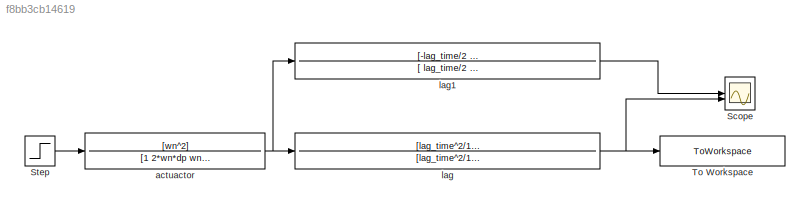
MODEL slx_f8bb3cb14619
KIND model
CONFIG AbsTol = auto
CONFIG EnableMultiTasking = off
CONFIG FixedStep = timestep
CONFIG MaxStep = auto
CONFIG MinStep = auto
CONFIG RelTol = 1e-3
CONFIG SampleTimeConstraint = Unconstrained
CONFIG SolverName = FixedStepAuto
CONFIG StartTime = 0.0
CONFIG StopTime = stop_time
BLOCK [Scope] Scope
  Floating = off
  NumInputPorts = 2
  ScopeSpecificationString = Simulink.scopes.TimeScopeBlockCfg('CurrentConfiguration', extmgr.ConfigurationSet(extmgr.Configuration('Core','General UI',true),extmgr.Configuration('Core','Source UI',true),extmgr.Configuration('Sources','WiredSimulink',true),extmgr.Configuration('Visuals','Time Domain',true,'SerializedDisplays',{struct('MinYLimReal','-7.37288','MaxYLimReal','16.4631','YLabelReal','','MinYLimMag','0.00000','MaxY...<+1357ch>
BLOCK [Step] Step
  After = 12.7
  SampleTime = 0
  Time = 0
BLOCK [ToWorkspace] To Workspace
  FixptAsFi = on
  MaxDataPoints = inf
  SampleTime = -1
  SaveFormat = Timeseries
  VariableName = actuactor_response
BLOCK [TransferFcn] actuactor 
  Denominator = [1 2*wn*dp wn^2]
  Numerator = [wn^2]
BLOCK [TransferFcn] lag
  Denominator = [lag_time^2/12 lag_time/2 1]
  Numerator = [lag_time^2/12 -lag_time/2 1]
BLOCK [TransferFcn] lag1
  Denominator = [ lag_time/2 1]
  Numerator = [-lag_time/2 1]
LINE Step:1 -> actuactor :1
NET actuactor :1 -> lag1:1, lag:1
LINE lag1:1 -> Scope:1
NET lag:1 -> Scope:2, To Workspace:1
note: NET lines group one-source signal fan-out (src -> all destinations, sorted); 1:1 wires keep LINE
